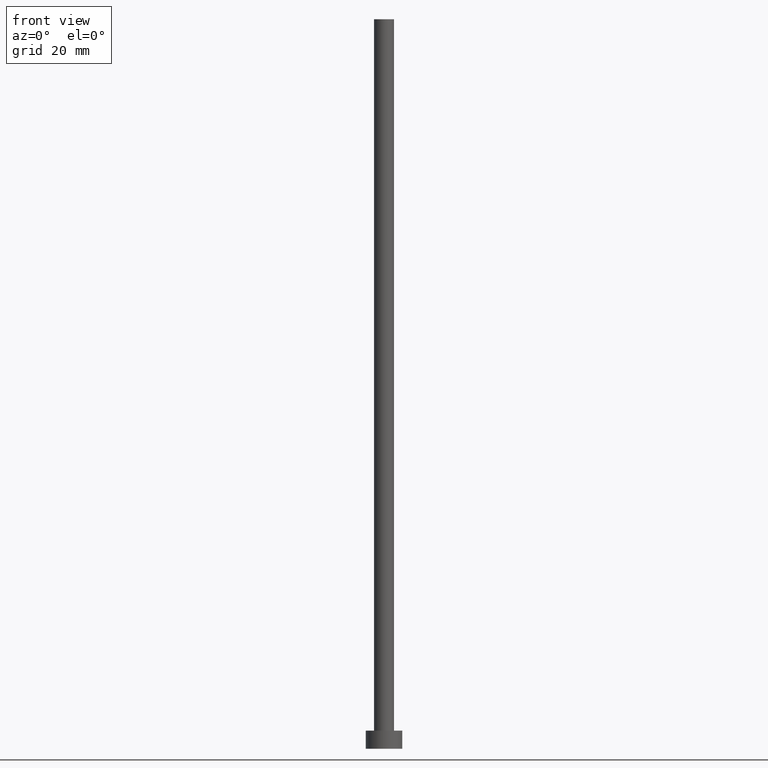
[diagram: clean part render]
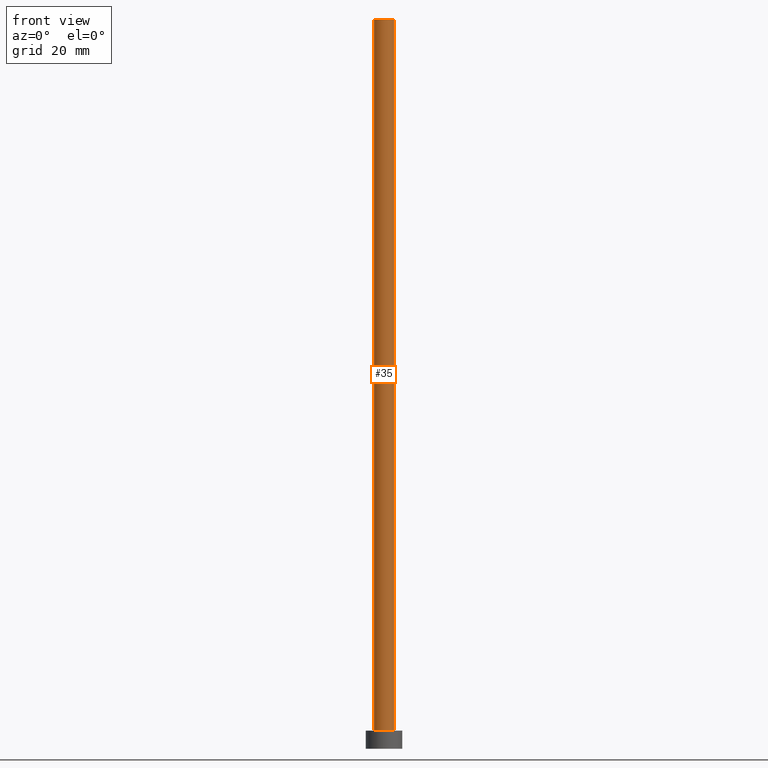
[diagram: same view with one face highlighted and labeled with its STEP entity id]
A machine part, front view. The second image highlights one B-rep face of the part: STEP entity #35.
In plain terms, the highlighted cylindrical surface (edge-blend (fillet) strip) has radius 2.75 mm, axis along (-0, -0, -1).
Its self-contained STEP definition (entity closure, byte-faithful):
#1 = DIRECTION ( 'NONE',  ( 1.000000000000000000, 0.000000000000000000, 0.000000000000000000 ) ) ;
#2 = CARTESIAN_POINT ( 'NONE',  ( -2.750000000000000000, 0.000000000000000000, 200.0000000000000000 ) ) ;
#7 = VERTEX_POINT ( 'NONE', #2 ) ;
#24 = FACE_OUTER_BOUND ( 'NONE', #179, .T. ) ;
#26 = LINE ( 'NONE', #96, #74 ) ;
#29 = AXIS2_PLACEMENT_3D ( 'NONE', #255, #160, #1 ) ;
#33 = ORIENTED_EDGE ( 'NONE', *, *, #209, .F. ) ;
#35 = ADVANCED_FACE ( 'NONE', ( #24 ), #94, .T. ) ;
#36 = VERTEX_POINT ( 'NONE', #141 ) ;
#45 = CARTESIAN_POINT ( 'NONE',  ( 0.000000000000000000, 0.000000000000000000, 200.0000000000000000 ) ) ;
#57 = CARTESIAN_POINT ( 'NONE',  ( 2.750000000000000000, 3.367778697655221012E-16, 200.0000000000000000 ) ) ;
#64 = DIRECTION ( 'NONE',  ( 0.000000000000000000, 0.000000000000000000, 1.000000000000000000 ) ) ;
#72 = EDGE_CURVE ( 'NONE', #7, #36, #134, .T. ) ;
#74 = VECTOR ( 'NONE', #187, 1000.000000000000000 ) ;
#76 = DIRECTION ( 'NONE',  ( 1.000000000000000000, 0.000000000000000000, 0.000000000000000000 ) ) ;
#94 = CYLINDRICAL_SURFACE ( 'NONE', #248, 2.750000000000000000 ) ;
#96 = CARTESIAN_POINT ( 'NONE',  ( 2.750000000000000000, 3.367778697655221012E-16, 200.0000000000000000 ) ) ;
#98 = EDGE_CURVE ( 'NONE', #36, #153, #139, .T. ) ;
#105 = VERTEX_POINT ( 'NONE', #57 ) ;
#115 = DIRECTION ( 'NONE',  ( -0.000000000000000000, -0.000000000000000000, -1.000000000000000000 ) ) ;
#116 = AXIS2_PLACEMENT_3D ( 'NONE', #45, #64, #76 ) ;
#134 = LINE ( 'NONE', #212, #224 ) ;
#139 = CIRCLE ( 'NONE', #29, 2.750000000000000000 ) ;
#141 = CARTESIAN_POINT ( 'NONE',  ( -2.750000000000000000, 0.000000000000000000, 5.000000000000000000 ) ) ;
#153 = VERTEX_POINT ( 'NONE', #246 ) ;
#160 = DIRECTION ( 'NONE',  ( 0.000000000000000000, 0.000000000000000000, 1.000000000000000000 ) ) ;
#161 = EDGE_CURVE ( 'NONE', #7, #105, #214, .T. ) ;
#172 = ORIENTED_EDGE ( 'NONE', *, *, #72, .T. ) ;
#179 = EDGE_LOOP ( 'NONE', ( #33, #251, #172, #225 ) ) ;
#187 = DIRECTION ( 'NONE',  ( -0.000000000000000000, -0.000000000000000000, -1.000000000000000000 ) ) ;
#196 = CARTESIAN_POINT ( 'NONE',  ( 0.000000000000000000, 0.000000000000000000, 200.0000000000000000 ) ) ;
#197 = DIRECTION ( 'NONE',  ( -0.000000000000000000, -0.000000000000000000, -1.000000000000000000 ) ) ;
#209 = EDGE_CURVE ( 'NONE', #105, #153, #26, .T. ) ;
#212 = CARTESIAN_POINT ( 'NONE',  ( -2.750000000000000000, 0.000000000000000000, 200.0000000000000000 ) ) ;
#214 = CIRCLE ( 'NONE', #116, 2.750000000000000000 ) ;
#224 = VECTOR ( 'NONE', #115, 1000.000000000000000 ) ;
#225 = ORIENTED_EDGE ( 'NONE', *, *, #98, .T. ) ;
#246 = CARTESIAN_POINT ( 'NONE',  ( 2.750000000000000000, 3.367778697655221012E-16, 5.000000000000000000 ) ) ;
#248 = AXIS2_PLACEMENT_3D ( 'NONE', #196, #197, #253 ) ;
#251 = ORIENTED_EDGE ( 'NONE', *, *, #161, .F. ) ;
#253 = DIRECTION ( 'NONE',  ( -1.000000000000000000, 0.000000000000000000, 0.000000000000000000 ) ) ;
#255 = CARTESIAN_POINT ( 'NONE',  ( 0.000000000000000000, 0.000000000000000000, 5.000000000000000000 ) ) ;